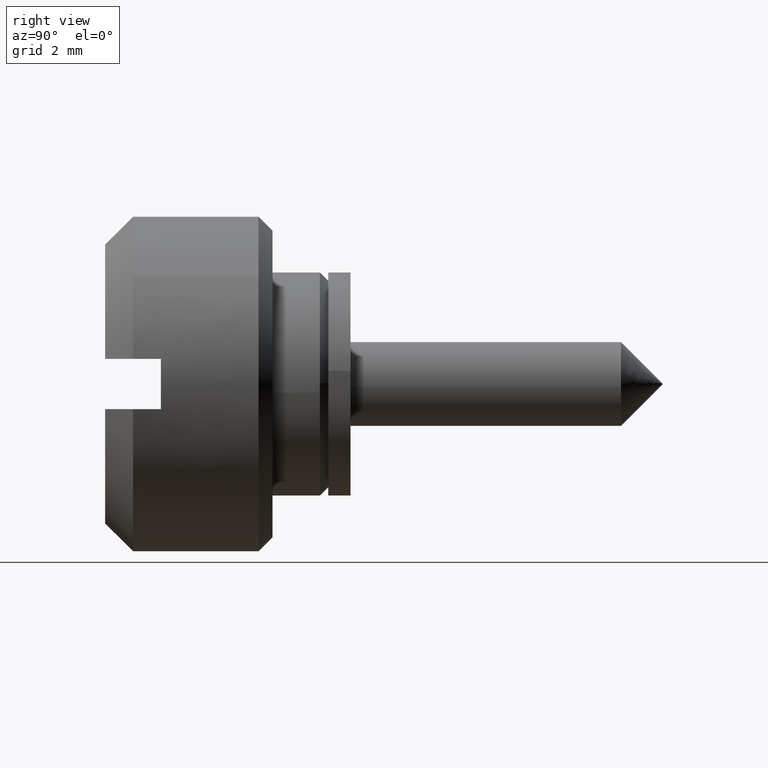
[diagram: clean part render]
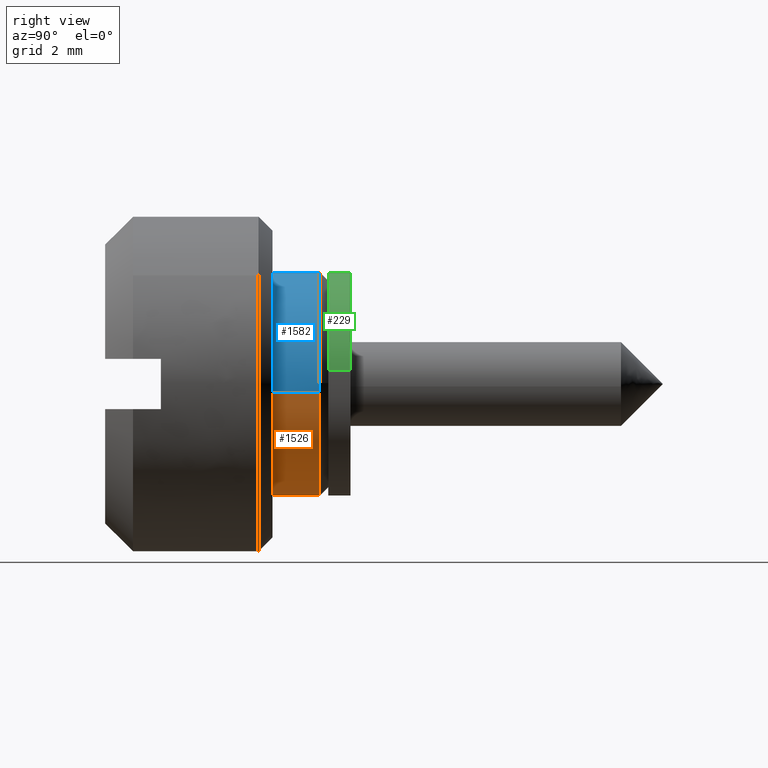
[diagram: same view with three faces highlighted in distinct colors, each labeled with its STEP entity id]
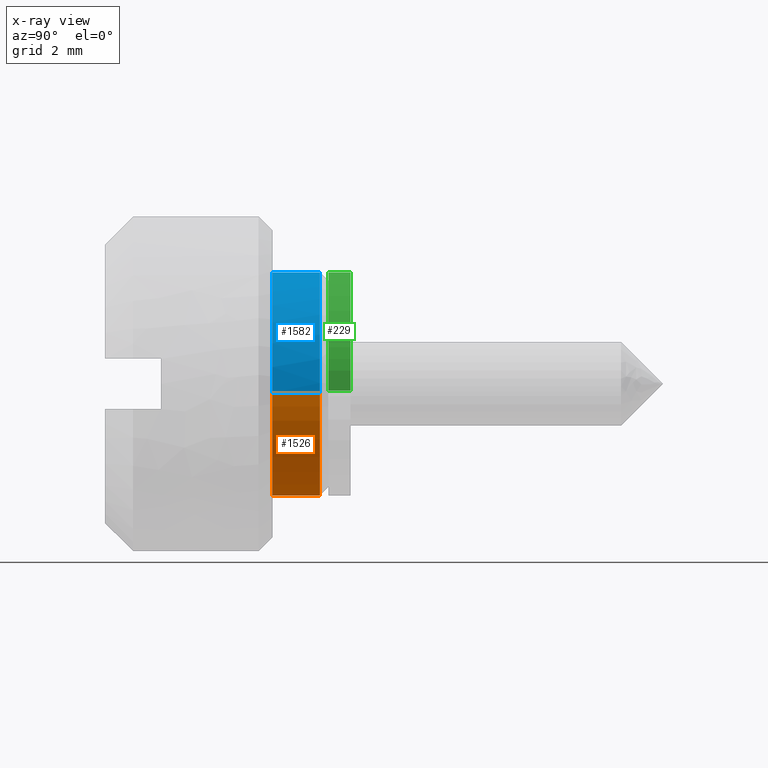
[diagram: x-ray of the same camera — body ghosted, the three highlighted faces saturated]
A machine part, right view with three faces highlighted in distinct colors.
The next image is the same camera in x-ray (body ghosted, the three faces saturated) — at least one of them is partly hidden behind the body in this view.
Their STEP definitions:

[orange] entity #1526 — the highlighted face is a freeform B-spline surface patch.
#1045=CARTESIAN_POINT('',(-0.300000000006657,3.991304303441627,-0.263609478930055));
#1046=VERTEX_POINT('',#1045);
#1047=CARTESIAN_POINT('',(-0.299999999999967,0.0,-3.999999999999837));
#1048=VERTEX_POINT('',#1047);
#1049=CARTESIAN_POINT('',(-0.300000000006657,3.991304303441627,-0.263609478930055));
#1050=CARTESIAN_POINT('',(-0.299999999999967,3.744530847028812,-3.999999999999838));
#1051=CARTESIAN_POINT('',(-0.299999999999967,0.0,-3.999999999999837));
#1059=(BOUNDED_CURVE()B_SPLINE_CURVE(2,(#1049,#1050,#1051),.UNSPECIFIED.,.F.,.U.)B_SPLINE_CURVE_WITH_KNOTS((3,3),(0.761505472931136,1.0),.UNSPECIFIED.)CURVE()GEOMETRIC_REPRESENTATION_ITEM()RATIONAL_B_SPLINE_CURVE((0.974281704173114,0.720586281189633,1.0))REPRESENTATION_ITEM(''));
#1060=EDGE_CURVE('',#1046,#1048,#1059,.T.);
#1108=CARTESIAN_POINT('',(-0.299999999999967,-3.987669526613749,-0.313833947351156));
#1109=VERTEX_POINT('',#1108);
#1125=CARTESIAN_POINT('',(-0.299999999999967,0.0,-3.999999999999837));
#1126=CARTESIAN_POINT('',(-0.299999999999967,-3.697564231987051,-3.999999999999837));
#1127=CARTESIAN_POINT('',(-0.299999999999967,-3.987669526613749,-0.313833947351156));
#1135=(BOUNDED_CURVE()B_SPLINE_CURVE(2,(#1125,#1126,#1127),.UNSPECIFIED.,.F.,.U.)B_SPLINE_CURVE_WITH_KNOTS((3,3),(0.0,0.236331405334194),.UNSPECIFIED.)CURVE()GEOMETRIC_REPRESENTATION_ITEM()RATIONAL_B_SPLINE_CURVE((1.0,0.723120535939845,0.969723574675808))REPRESENTATION_ITEM(''));
#1136=EDGE_CURVE('',#1048,#1109,#1135,.T.);
#1163=CARTESIAN_POINT('',(-0.299999999999967,3.987669526613749,0.313833947351484));
#1164=VERTEX_POINT('',#1163);
#1165=CARTESIAN_POINT('',(-0.299999999999967,3.987669526613749,0.313833947351484));
#1166=CARTESIAN_POINT('',(-0.299999999999967,4.000000000000000,0.157159204599553));
#1167=CARTESIAN_POINT('',(-0.299999999999967,4.0,1.634248E-013));
#1168=CARTESIAN_POINT('',(-0.299999999999967,4.000000000000001,-0.131948162137622));
#1169=CARTESIAN_POINT('',(-0.300000000006657,3.991304303441627,-0.263609478930055));
#1177=(BOUNDED_CURVE()B_SPLINE_CURVE(2,(#1165,#1166,#1167,#1168,#1169),.UNSPECIFIED.,.F.,.U.)B_SPLINE_CURVE_WITH_KNOTS((3,2,3),(0.736331405334194,0.750000000000000,0.761505472931137),.UNSPECIFIED.)CURVE()GEOMETRIC_REPRESENTATION_ITEM()RATIONAL_B_SPLINE_CURVE((0.969723574675808,0.983986245246702,1.0,0.986520499996913,0.974281704173113))REPRESENTATION_ITEM(''));
#1178=EDGE_CURVE('',#1164,#1046,#1177,.T.);
#1459=CARTESIAN_POINT('',(-2.042500000000001,-3.987669334932511,-0.313836382911219));
#1460=CARTESIAN_POINT('',(-2.042500000000001,-3.673832952021128,-4.301505717843729));
#1461=CARTESIAN_POINT('',(-2.042500000000001,0.313836382911382,-3.987669334932347));
#1462=CARTESIAN_POINT('',(-2.042500000000001,4.301505717843893,-3.673832952020966));
#1463=CARTESIAN_POINT('',(-2.042500000000001,3.987669334932511,0.313836382911546));
#1464=CARTESIAN_POINT('',(-0.256437499999966,-3.987669334932511,-0.313836382911219));
#1465=CARTESIAN_POINT('',(-0.256437499999966,-3.673832952021128,-4.301505717843729));
#1466=CARTESIAN_POINT('',(-0.256437499999966,0.313836382911382,-3.987669334932347));
#1467=CARTESIAN_POINT('',(-0.256437499999966,4.301505717843893,-3.673832952020966));
#1468=CARTESIAN_POINT('',(-0.256437499999966,3.987669334932511,0.313836382911546));
#1476=(BOUNDED_SURFACE()B_SPLINE_SURFACE(2,1,((#1459,#1464),(#1460,#1465),(#1461,#1466),(#1462,#1467),(#1463,#1468)),.UNSPECIFIED.,.F.,.F.,.U.)B_SPLINE_SURFACE_WITH_KNOTS((3,2,3),(2,2),(0.0,6.627416997969518,13.254833995939039),(0.0,1.0),.UNSPECIFIED.)GEOMETRIC_REPRESENTATION_ITEM()RATIONAL_B_SPLINE_SURFACE(((1.0,1.0),(0.707106781186548,0.707106781186548),(1.0,1.0),(0.707106781186548,0.707106781186548),(1.0,1.0)))REPRESENTATION_ITEM('')SURFACE());
#1477=CARTESIAN_POINT('',(-2.0,0.0,-3.999999999999837));
#1478=VERTEX_POINT('',#1477);
#1479=CARTESIAN_POINT('',(-2.000000000000028,-3.987669528953986,-0.313833917615145));
#1480=VERTEX_POINT('',#1479);
#1481=CARTESIAN_POINT('',(-2.0,0.0,-3.999999999999837));
#1482=CARTESIAN_POINT('',(-2.000000000000000,-3.697564259645009,-3.999999999999838));
#1483=CARTESIAN_POINT('',(-2.000000000000028,-3.987669528953986,-0.313833917615145));
#1491=(BOUNDED_CURVE()B_SPLINE_CURVE(2,(#1481,#1482,#1483),.UNSPECIFIED.,.F.,.U.)B_SPLINE_CURVE_WITH_KNOTS((3,3),(0.0,0.236331406612505),.UNSPECIFIED.)CURVE()GEOMETRIC_REPRESENTATION_ITEM()RATIONAL_B_SPLINE_CURVE((1.0,0.723120534442211,0.969723577343548))REPRESENTATION_ITEM(''));
#1492=EDGE_CURVE('',#1478,#1480,#1491,.T.);
#1493=ORIENTED_EDGE('',*,*,#1492,.F.);
#1494=CARTESIAN_POINT('',(-2.000000000000028,3.987669528953986,0.313833917615472));
#1495=VERTEX_POINT('',#1494);
#1496=CARTESIAN_POINT('',(-2.000000000000028,3.987669528953986,0.313833917615472));
#1497=CARTESIAN_POINT('',(-2.000000000000000,4.000000000000001,0.157159189662551));
#1498=CARTESIAN_POINT('',(-2.0,4.0,1.634248E-013));
#1499=CARTESIAN_POINT('',(-2.000000000000000,4.000000000000000,-3.999999999999837));
#1500=CARTESIAN_POINT('',(-2.0,0.0,-3.999999999999837));
#1508=(BOUNDED_CURVE()B_SPLINE_CURVE(2,(#1496,#1497,#1498,#1499,#1500),.UNSPECIFIED.,.F.,.U.)B_SPLINE_CURVE_WITH_KNOTS((3,2,3),(0.736331406612505,0.750000000000000,1.0),.UNSPECIFIED.)CURVE()GEOMETRIC_REPRESENTATION_ITEM()RATIONAL_B_SPLINE_CURVE((0.969723577343548,0.983986246744337,1.0,0.707106781186548,1.0))REPRESENTATION_ITEM(''));
#1509=EDGE_CURVE('',#1495,#1478,#1508,.T.);
#1510=ORIENTED_EDGE('',*,*,#1509,.F.);
#1511=CARTESIAN_POINT('',(-2.000000000000028,3.987669528953986,0.313833917615472));
#1512=CARTESIAN_POINT('',(-0.299999999999967,3.987669526613749,0.313833947351484));
#1513=QUASI_UNIFORM_CURVE('',1,(#1511,#1512),.UNSPECIFIED.,.F.,.U.);
#1514=EDGE_CURVE('',#1495,#1164,#1513,.T.);
#1515=ORIENTED_EDGE('',*,*,#1514,.T.);
#1516=ORIENTED_EDGE('',*,*,#1178,.T.);
#1517=ORIENTED_EDGE('',*,*,#1060,.T.);
#1518=ORIENTED_EDGE('',*,*,#1136,.T.);
#1519=CARTESIAN_POINT('',(-2.000000000000028,-3.987669528953986,-0.313833917615145));
#1520=CARTESIAN_POINT('',(-0.299999999999967,-3.987669526613749,-0.313833947351156));
#1521=QUASI_UNIFORM_CURVE('',1,(#1519,#1520),.UNSPECIFIED.,.F.,.U.);
#1522=EDGE_CURVE('',#1480,#1109,#1521,.T.);
#1523=ORIENTED_EDGE('',*,*,#1522,.F.);
#1524=EDGE_LOOP('',(#1493,#1510,#1515,#1516,#1517,#1518,#1523));
#1525=FACE_OUTER_BOUND('',#1524,.T.);
#1526=ADVANCED_FACE('',(#1525),#1476,.T.);

[blue] entity #1582 — the highlighted face is a freeform B-spline surface patch.
#1101=CARTESIAN_POINT('',(-0.299999999999994,-3.999847692256710,0.034906141993854));
#1102=VERTEX_POINT('',#1101);
#1108=CARTESIAN_POINT('',(-0.299999999999967,-3.987669526613749,-0.313833947351156));
#1109=VERTEX_POINT('',#1108);
#1110=CARTESIAN_POINT('',(-0.299999999999967,-3.987669526613749,-0.313833947351156));
#1111=CARTESIAN_POINT('',(-0.299999999999967,-4.000000000000000,-0.157159204599226));
#1112=CARTESIAN_POINT('',(-0.299999999999967,-4.0,1.634248E-013));
#1113=CARTESIAN_POINT('',(-0.299999999999967,-4.000000000000001,0.017453403283162));
#1114=CARTESIAN_POINT('',(-0.299999999999994,-3.999847692256709,0.034906141993854));
#1122=(BOUNDED_CURVE()B_SPLINE_CURVE(2,(#1110,#1111,#1112,#1113,#1114),.UNSPECIFIED.,.F.,.U.)B_SPLINE_CURVE_WITH_KNOTS((3,2,3),(0.236331405334194,0.250000000000000,0.251539894335004),.UNSPECIFIED.)CURVE()GEOMETRIC_REPRESENTATION_ITEM()RATIONAL_B_SPLINE_CURVE((0.969723574675808,0.983986245246702,1.0,0.998195901566352,0.996414028100367))REPRESENTATION_ITEM(''));
#1123=EDGE_CURVE('',#1109,#1102,#1122,.T.);
#1163=CARTESIAN_POINT('',(-0.299999999999967,3.987669526613749,0.313833947351484));
#1164=VERTEX_POINT('',#1163);
#1180=CARTESIAN_POINT('',(-0.299999999999967,0.0,4.000000000000163));
#1181=VERTEX_POINT('',#1180);
#1182=CARTESIAN_POINT('',(-0.299999999999967,0.0,4.000000000000163));
#1183=CARTESIAN_POINT('',(-0.299999999999967,3.697564231987051,4.000000000000163));
#1184=CARTESIAN_POINT('',(-0.299999999999967,3.987669526613749,0.313833947351484));
#1192=(BOUNDED_CURVE()B_SPLINE_CURVE(2,(#1182,#1183,#1184),.UNSPECIFIED.,.F.,.U.)B_SPLINE_CURVE_WITH_KNOTS((3,3),(0.500000000000000,0.736331405334194),.UNSPECIFIED.)CURVE()GEOMETRIC_REPRESENTATION_ITEM()RATIONAL_B_SPLINE_CURVE((1.0,0.723120535939845,0.969723574675808))REPRESENTATION_ITEM(''));
#1193=EDGE_CURVE('',#1181,#1164,#1192,.T.);
#1195=CARTESIAN_POINT('',(-0.299999999999994,-3.999847692256710,0.034906141993854));
#1196=CARTESIAN_POINT('',(-0.299999999999967,-3.965244842379527,4.000000000000163));
#1197=CARTESIAN_POINT('',(-0.299999999999967,0.0,4.000000000000163));
#1205=(BOUNDED_CURVE()B_SPLINE_CURVE(2,(#1195,#1196,#1197),.UNSPECIFIED.,.F.,.U.)B_SPLINE_CURVE_WITH_KNOTS((3,3),(0.251539894335004,0.500000000000000),.UNSPECIFIED.)CURVE()GEOMETRIC_REPRESENTATION_ITEM()RATIONAL_B_SPLINE_CURVE((0.996414028100366,0.708910879620196,1.0))REPRESENTATION_ITEM(''));
#1206=EDGE_CURVE('',#1102,#1181,#1205,.T.);
#1479=CARTESIAN_POINT('',(-2.000000000000028,-3.987669528953986,-0.313833917615145));
#1480=VERTEX_POINT('',#1479);
#1494=CARTESIAN_POINT('',(-2.000000000000028,3.987669528953986,0.313833917615472));
#1495=VERTEX_POINT('',#1494);
#1511=CARTESIAN_POINT('',(-2.000000000000028,3.987669528953986,0.313833917615472));
#1512=CARTESIAN_POINT('',(-0.299999999999967,3.987669526613749,0.313833947351484));
#1513=QUASI_UNIFORM_CURVE('',1,(#1511,#1512),.UNSPECIFIED.,.F.,.U.);
#1514=EDGE_CURVE('',#1495,#1164,#1513,.T.);
#1519=CARTESIAN_POINT('',(-2.000000000000028,-3.987669528953986,-0.313833917615145));
#1520=CARTESIAN_POINT('',(-0.299999999999967,-3.987669526613749,-0.313833947351156));
#1521=QUASI_UNIFORM_CURVE('',1,(#1519,#1520),.UNSPECIFIED.,.F.,.U.);
#1522=EDGE_CURVE('',#1480,#1109,#1521,.T.);
#1527=CARTESIAN_POINT('',(-2.042500000000001,3.987669334932511,0.313836382911546));
#1528=CARTESIAN_POINT('',(-2.042500000000001,3.673832952021128,4.301505717844056));
#1529=CARTESIAN_POINT('',(-2.042500000000001,-0.313836382911382,3.987669334932674));
#1530=CARTESIAN_POINT('',(-2.042500000000001,-4.301505717843893,3.673832952021292));
#1531=CARTESIAN_POINT('',(-2.042500000000001,-3.987669334932511,-0.313836382911219));
#1532=CARTESIAN_POINT('',(-0.256437499999966,3.987669334932511,0.313836382911546));
#1533=CARTESIAN_POINT('',(-0.256437499999966,3.673832952021128,4.301505717844056));
#1534=CARTESIAN_POINT('',(-0.256437499999966,-0.313836382911382,3.987669334932674));
#1535=CARTESIAN_POINT('',(-0.256437499999966,-4.301505717843893,3.673832952021292));
#1536=CARTESIAN_POINT('',(-0.256437499999966,-3.987669334932511,-0.313836382911219));
#1544=(BOUNDED_SURFACE()B_SPLINE_SURFACE(2,1,((#1527,#1532),(#1528,#1533),(#1529,#1534),(#1530,#1535),(#1531,#1536)),.UNSPECIFIED.,.F.,.F.,.U.)B_SPLINE_SURFACE_WITH_KNOTS((3,2,3),(2,2),(0.0,6.627416997969518,13.254833995939039),(0.0,1.0),.UNSPECIFIED.)GEOMETRIC_REPRESENTATION_ITEM()RATIONAL_B_SPLINE_SURFACE(((1.0,1.0),(0.707106781186548,0.707106781186548),(1.0,1.0),(0.707106781186548,0.707106781186548),(1.0,1.0)))REPRESENTATION_ITEM('')SURFACE());
#1545=CARTESIAN_POINT('',(-2.0,0.0,4.000000000000163));
#1546=VERTEX_POINT('',#1545);
#1547=CARTESIAN_POINT('',(-2.000000000000028,-3.987669528953986,-0.313833917615145));
#1548=CARTESIAN_POINT('',(-2.000000000000000,-4.0,-0.157159189662224));
#1549=CARTESIAN_POINT('',(-2.0,-4.0,1.634248E-013));
#1550=CARTESIAN_POINT('',(-2.000000000000000,-4.000000000000000,4.000000000000164));
#1551=CARTESIAN_POINT('',(-2.0,0.0,4.000000000000163));
#1559=(BOUNDED_CURVE()B_SPLINE_CURVE(2,(#1547,#1548,#1549,#1550,#1551),.UNSPECIFIED.,.F.,.U.)B_SPLINE_CURVE_WITH_KNOTS((3,2,3),(0.236331406612505,0.250000000000000,0.500000000000000),.UNSPECIFIED.)CURVE()GEOMETRIC_REPRESENTATION_ITEM()RATIONAL_B_SPLINE_CURVE((0.969723577343548,0.983986246744337,1.0,0.707106781186548,1.0))REPRESENTATION_ITEM(''));
#1560=EDGE_CURVE('',#1480,#1546,#1559,.T.);
#1561=ORIENTED_EDGE('',*,*,#1560,.F.);
#1562=ORIENTED_EDGE('',*,*,#1522,.T.);
#1563=ORIENTED_EDGE('',*,*,#1123,.T.);
#1564=ORIENTED_EDGE('',*,*,#1206,.T.);
#1565=ORIENTED_EDGE('',*,*,#1193,.T.);
#1566=ORIENTED_EDGE('',*,*,#1514,.F.);
#1567=CARTESIAN_POINT('',(-2.0,0.0,4.000000000000163));
#1568=CARTESIAN_POINT('',(-2.000000000000000,3.697564259645008,4.000000000000163));
#1569=CARTESIAN_POINT('',(-2.000000000000028,3.987669528953986,0.313833917615472));
#1577=(BOUNDED_CURVE()B_SPLINE_CURVE(2,(#1567,#1568,#1569),.UNSPECIFIED.,.F.,.U.)B_SPLINE_CURVE_WITH_KNOTS((3,3),(0.500000000000000,0.736331406612505),.UNSPECIFIED.)CURVE()GEOMETRIC_REPRESENTATION_ITEM()RATIONAL_B_SPLINE_CURVE((1.0,0.723120534442211,0.969723577343548))REPRESENTATION_ITEM(''));
#1578=EDGE_CURVE('',#1546,#1495,#1577,.T.);
#1579=ORIENTED_EDGE('',*,*,#1578,.F.);
#1580=EDGE_LOOP('',(#1561,#1562,#1563,#1564,#1565,#1566,#1579));
#1581=FACE_OUTER_BOUND('',#1580,.T.);
#1582=ADVANCED_FACE('',(#1581),#1544,.T.);

[green] entity #229 — the highlighted face is a freeform B-spline surface patch.
#66=CARTESIAN_POINT('',(0.800000000000150,-3.972038580968464,0.472132938145546));
#67=VERTEX_POINT('',#66);
#85=CARTESIAN_POINT('',(1.597178E-017,-3.972038575096894,0.472132987543290));
#86=VERTEX_POINT('',#85);
#87=CARTESIAN_POINT('',(1.597178E-017,-3.972038575096894,0.472132987543290));
#88=CARTESIAN_POINT('',(0.800000000000150,-3.972038580968464,0.472132938145546));
#89=QUASI_UNIFORM_CURVE('',1,(#87,#88),.UNSPECIFIED.,.F.,.U.);
#90=EDGE_CURVE('',#86,#67,#89,.T.);
#109=CARTESIAN_POINT('',(1.734723E-017,3.992539496856583,-0.244189201267046));
#110=VERTEX_POINT('',#109);
#124=CARTESIAN_POINT('',(0.800000000000159,3.992539500646280,-0.244189139303502));
#125=VERTEX_POINT('',#124);
#126=CARTESIAN_POINT('',(1.734723E-017,3.992539496856583,-0.244189201267046));
#127=CARTESIAN_POINT('',(0.800000000000159,3.992539500646280,-0.244189139303502));
#128=QUASI_UNIFORM_CURVE('',1,(#126,#127),.UNSPECIFIED.,.F.,.U.);
#129=EDGE_CURVE('',#110,#125,#128,.T.);
#147=CARTESIAN_POINT('',(-0.020000000000001,3.992539193687467,-0.244194158139265));
#148=CARTESIAN_POINT('',(-0.020000000000001,4.236733351826894,3.748345035548203));
#149=CARTESIAN_POINT('',(-0.020000000000001,0.244194158139428,3.992539193687630));
#150=CARTESIAN_POINT('',(-0.020000000000001,-3.526173963358004,4.223144786930274));
#151=CARTESIAN_POINT('',(-0.020000000000001,-3.972038105454666,0.472136938627197));
#152=CARTESIAN_POINT('',(0.820500000000024,3.992539193687467,-0.244194158139265));
#153=CARTESIAN_POINT('',(0.820500000000024,4.236733351826894,3.748345035548203));
#154=CARTESIAN_POINT('',(0.820500000000024,0.244194158139428,3.992539193687630));
#155=CARTESIAN_POINT('',(0.820500000000024,-3.526173963358004,4.223144786930274));
#156=CARTESIAN_POINT('',(0.820500000000024,-3.972038105454666,0.472136938627197));
#164=(BOUNDED_SURFACE()B_SPLINE_SURFACE(2,1,((#147,#152),(#148,#153),(#149,#154),(#150,#155),(#151,#156)),.UNSPECIFIED.,.F.,.F.,.U.)B_SPLINE_SURFACE_WITH_KNOTS((3,2,3),(2,2),(0.0,6.627416997969518,12.989737316020260),(0.0,1.0),.UNSPECIFIED.)GEOMETRIC_REPRESENTATION_ITEM()RATIONAL_B_SPLINE_SURFACE(((1.0,1.0),(0.707106781186548,0.707106781186548),(1.0,1.0),(0.718822509939086,0.718822509939086),(0.977505800795127,0.977505800795127)))REPRESENTATION_ITEM('')SURFACE());
#165=CARTESIAN_POINT('',(0.800000000000023,0.0,4.000000000000163));
#166=VERTEX_POINT('',#165);
#167=CARTESIAN_POINT('',(0.800000000000023,0.0,4.000000000000163));
#168=CARTESIAN_POINT('',(0.800000000000023,-3.552701707134397,4.000000000000163));
#169=CARTESIAN_POINT('',(0.800000000000150,-3.972038580968464,0.472132938145546));
#177=(BOUNDED_CURVE()B_SPLINE_CURVE(2,(#167,#168,#169),.UNSPECIFIED.,.F.,.U.)B_SPLINE_CURVE_WITH_KNOTS((3,3),(0.0,0.229562643729127),.UNSPECIFIED.)CURVE()GEOMETRIC_REPRESENTATION_ITEM()RATIONAL_B_SPLINE_CURVE((1.0,0.731050633435401,0.956027087813549))REPRESENTATION_ITEM(''));
#178=EDGE_CURVE('',#166,#67,#177,.T.);
#179=ORIENTED_EDGE('',*,*,#178,.F.);
#180=CARTESIAN_POINT('',(0.800000000000159,3.992539500646280,-0.244189139303502));
#181=CARTESIAN_POINT('',(0.800000000000023,4.0,-0.122208536740389));
#182=CARTESIAN_POINT('',(0.800000000000023,4.0,1.634248E-013));
#183=CARTESIAN_POINT('',(0.800000000000023,4.000000000000000,4.000000000000164));
#184=CARTESIAN_POINT('',(0.800000000000023,0.0,4.000000000000163));
#192=(BOUNDED_CURVE()B_SPLINE_CURVE(2,(#180,#181,#182,#183,#184),.UNSPECIFIED.,.F.,.U.)B_SPLINE_CURVE_WITH_KNOTS((3,2,3),(0.739333179142566,0.750000000000000,1.0),.UNSPECIFIED.)CURVE()GEOMETRIC_REPRESENTATION_ITEM()RATIONAL_B_SPLINE_CURVE((0.976072506532913,0.987503042018239,1.0,0.707106781186548,1.0))REPRESENTATION_ITEM(''));
#193=EDGE_CURVE('',#125,#166,#192,.T.);
#194=ORIENTED_EDGE('',*,*,#193,.F.);
#195=ORIENTED_EDGE('',*,*,#129,.F.);
#196=CARTESIAN_POINT('',(0.0,0.0,4.000000000000163));
#197=VERTEX_POINT('',#196);
#198=CARTESIAN_POINT('',(1.734723E-017,3.992539496856583,-0.244189201267046));
#199=CARTESIAN_POINT('',(0.0,4.000000000000000,-0.122208567809024));
#200=CARTESIAN_POINT('',(0.0,4.0,1.634248E-013));
#201=CARTESIAN_POINT('',(0.0,4.000000000000000,4.000000000000164));
#202=CARTESIAN_POINT('',(0.0,0.0,4.000000000000163));
#210=(BOUNDED_CURVE()B_SPLINE_CURVE(2,(#198,#199,#200,#201,#202),.UNSPECIFIED.,.F.,.U.)B_SPLINE_CURVE_WITH_KNOTS((3,2,3),(0.739333176464668,0.750000000000000,1.0),.UNSPECIFIED.)CURVE()GEOMETRIC_REPRESENTATION_ITEM()RATIONAL_B_SPLINE_CURVE((0.976072500793657,0.987503038880886,1.0,0.707106781186548,1.0))REPRESENTATION_ITEM(''));
#211=EDGE_CURVE('',#110,#197,#210,.T.);
#212=ORIENTED_EDGE('',*,*,#211,.T.);
#213=CARTESIAN_POINT('',(0.0,0.0,4.000000000000163));
#214=CARTESIAN_POINT('',(0.0,-3.552701662640661,4.000000000000164));
#215=CARTESIAN_POINT('',(1.597178E-017,-3.972038575096895,0.472132987543290));
#223=(BOUNDED_CURVE()B_SPLINE_CURVE(2,(#213,#214,#215),.UNSPECIFIED.,.F.,.U.)B_SPLINE_CURVE_WITH_KNOTS((3,3),(0.0,0.229562641627339),.UNSPECIFIED.)CURVE()GEOMETRIC_REPRESENTATION_ITEM()RATIONAL_B_SPLINE_CURVE((1.0,0.731050635897798,0.956027083693953))REPRESENTATION_ITEM(''));
#224=EDGE_CURVE('',#197,#86,#223,.T.);
#225=ORIENTED_EDGE('',*,*,#224,.T.);
#226=ORIENTED_EDGE('',*,*,#90,.T.);
#227=EDGE_LOOP('',(#179,#194,#195,#212,#225,#226));
#228=FACE_OUTER_BOUND('',#227,.T.);
#229=ADVANCED_FACE('',(#228),#164,.T.);